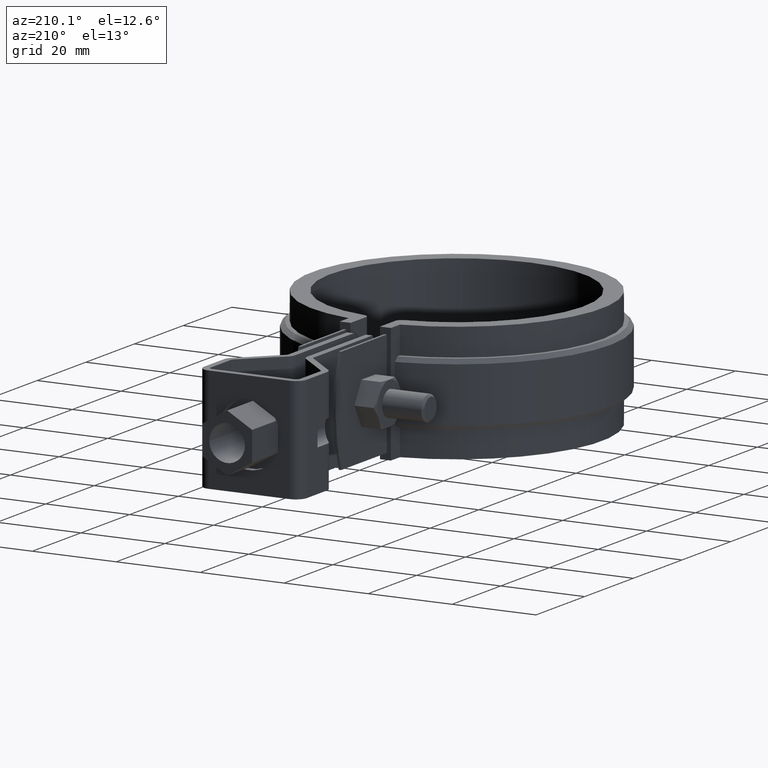
[diagram: clean part render]
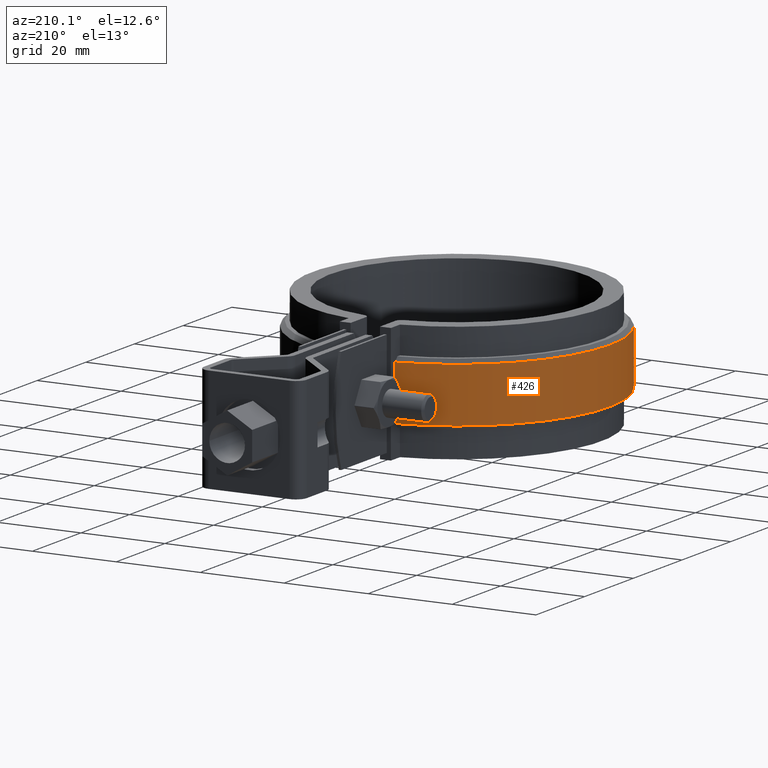
[diagram: same view with one face highlighted and labeled with its STEP entity id]
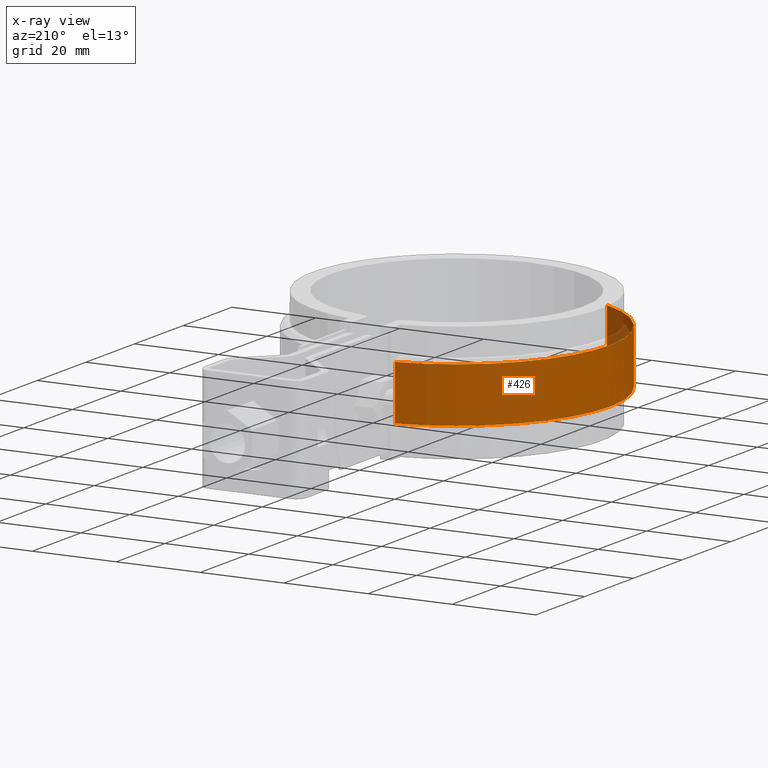
[diagram: x-ray of the same camera — body ghosted, the highlighted face saturated]
A machine part, auxiliary view. The second image highlights one B-rep face of the part: STEP entity #426.
The next image is the same camera in x-ray: the body ghosted, the highlighted face saturated — about 4% of this face is hidden behind the body in this view.
In plain terms, the highlighted cylindrical surface (partial cylindrical patch) has radius 36.495 mm, axis along (0, 0, -1).
Its self-contained STEP definition (entity closure, byte-faithful):
#426 = ADVANCED_FACE( '', ( #775 ), #776, .T. );
#775 = FACE_OUTER_BOUND( '', #1600, .T. );
#776 = CYLINDRICAL_SURFACE( '', #1601, 36.4950000000000 );
#1600 = EDGE_LOOP( '', ( #3708, #3709, #3710, #3711 ) );
#1601 = AXIS2_PLACEMENT_3D( '', #3712, #3713, #3714 );
#3708 = ORIENTED_EDGE( '', *, *, #4912, .F. );
#3709 = ORIENTED_EDGE( '', *, *, #5114, .T. );
#3710 = ORIENTED_EDGE( '', *, *, #5097, .T. );
#3711 = ORIENTED_EDGE( '', *, *, #5113, .T. );
#3712 = CARTESIAN_POINT( '', ( -8.67361737988404E-016, -6.93889390390723E-015, -20.0000000000000 ) );
#3713 = DIRECTION( '', ( 0.000000000000000, 0.000000000000000, -1.00000000000000 ) );
#3714 = DIRECTION( '', ( 0.168801338178640, 0.985650094216553, 0.000000000000000 ) );
#4912 = EDGE_CURVE( '', #5617, #5619, #5620, .T. );
#5097 = EDGE_CURVE( '', #5934, #5930, #5935, .T. );
#5113 = EDGE_CURVE( '', #5930, #5619, #5955, .T. );
#5114 = EDGE_CURVE( '', #5617, #5934, #5956, .F. );
#5617 = VERTEX_POINT( '', #7642 );
#5619 = VERTEX_POINT( '', #7647 );
#5620 = LINE( '', #7648, #7649 );
#5930 = VERTEX_POINT( '', #8994 );
#5934 = VERTEX_POINT( '', #8999 );
#5935 = LINE( '', #9000, #9001 );
#5955 = CIRCLE( '', #9033, 36.4950000000000 );
#5956 = CIRCLE( '', #9034, 36.4950000000000 );
#7642 = CARTESIAN_POINT( '', ( -6.09999999999999, 35.9815928635740, -19.0000000000000 ) );
#7647 = CARTESIAN_POINT( '', ( -6.09999999999999, 35.9815928635740, -6.00000000000000 ) );
#7648 = CARTESIAN_POINT( '', ( -6.09999999999999, 35.9815928635740, -20.0000000000000 ) );
#7649 = VECTOR( '', #9887, 1000.00000000000 );
#8994 = CARTESIAN_POINT( '', ( -17.0660060463684, -32.2588974180042, -6.00000000000000 ) );
#8999 = CARTESIAN_POINT( '', ( -17.0660060463684, -32.2588974180042, -19.0000000000000 ) );
#9000 = CARTESIAN_POINT( '', ( -17.0660060463684, -32.2588974180042, -20.0000000000000 ) );
#9001 = VECTOR( '', #10112, 1000.00000000000 );
#9033 = AXIS2_PLACEMENT_3D( '', #10134, #10135, #10136 );
#9034 = AXIS2_PLACEMENT_3D( '', #10137, #10138, #10139 );
#9887 = DIRECTION( '', ( 0.000000000000000, 0.000000000000000, 1.00000000000000 ) );
#10112 = DIRECTION( '', ( 0.000000000000000, 0.000000000000000, 1.00000000000000 ) );
#10134 = CARTESIAN_POINT( '', ( -8.67361737988404E-016, -6.93889390390723E-015, -6.00000000000000 ) );
#10135 = DIRECTION( '', ( 0.000000000000000, 0.000000000000000, -1.00000000000000 ) );
#10136 = DIRECTION( '', ( -1.00000000000000, 0.000000000000000, 0.000000000000000 ) );
#10137 = CARTESIAN_POINT( '', ( -8.67361737988404E-016, -6.93889390390723E-015, -19.0000000000000 ) );
#10138 = DIRECTION( '', ( 0.000000000000000, 0.000000000000000, -1.00000000000000 ) );
#10139 = DIRECTION( '', ( -1.00000000000000, 0.000000000000000, 0.000000000000000 ) );